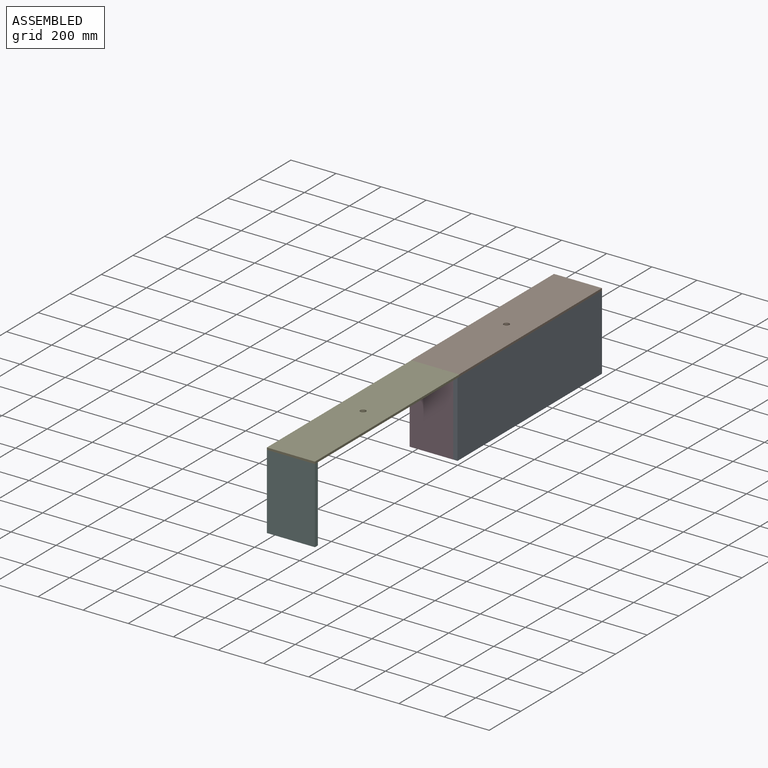
[diagram: assembled view]
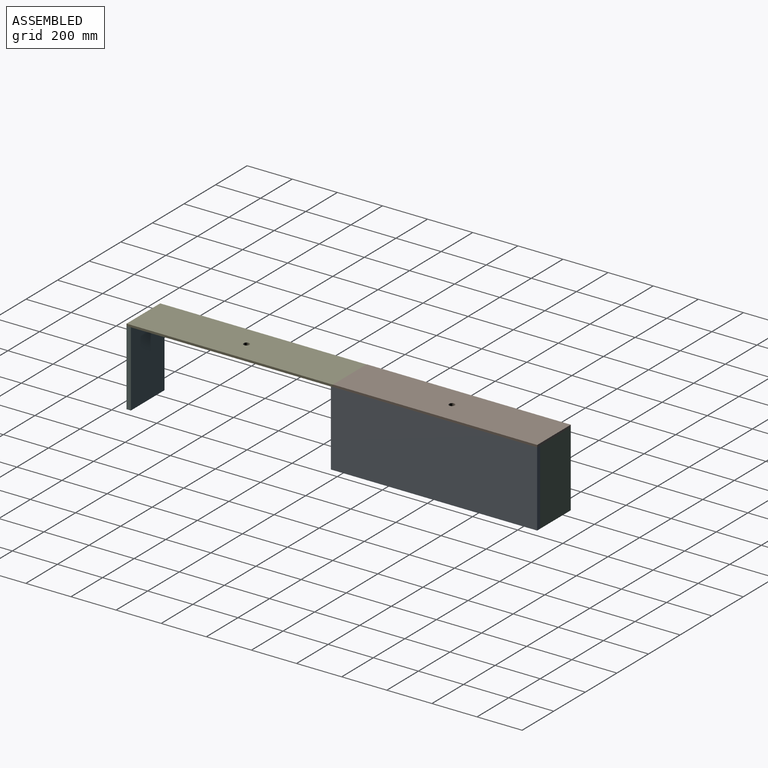
[diagram: assembled view, second angle]
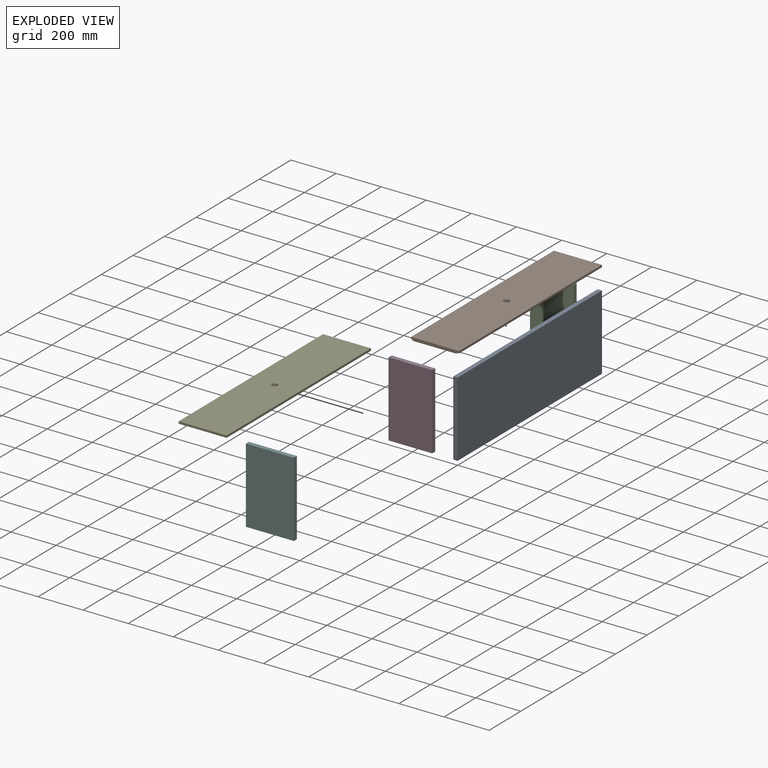
[diagram: exploded view]
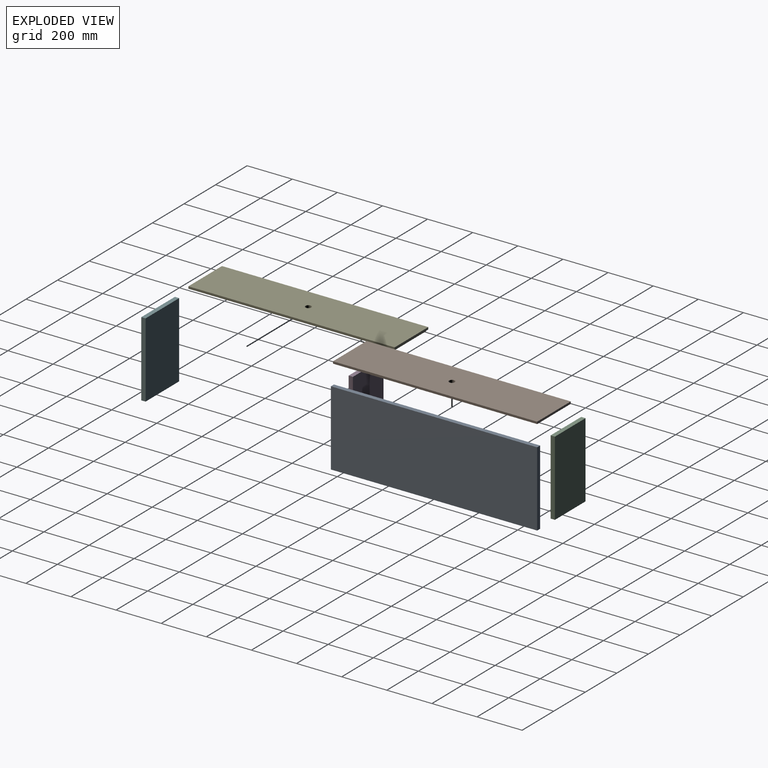
[diagram: exploded view, second angle]
ASSEMBLY  parts=6 mates=4
PART A: 6 faces, bbox 19.1x914.4x333.4 mm
  f0: plane 914.4x19.05mm, normal (0,0,1), area 17419.3mm2, adj f1,f3,f4,f5
  f1: plane 333.38x19.05mm, normal (0,-1,0), area 6350.8mm2, adj f0,f2,f4,f5
  f2: plane 914.4x19.05mm, normal (0,0,-1), area 17419.3mm2, adj f1,f3,f4,f5
  f3: plane 333.38x19.05mm, normal (0,1,0), area 6350.8mm2, adj f0,f2,f4,f5
  f4: plane 914.4x333.38mm, normal (1,0,0), area 304838.1mm2, adj f0,f1,f2,f3
  f5: plane 914.4x333.38mm, normal (-1,0,0), area 304838.1mm2, adj f0,f1,f2,f3
PART B: 11 faces, bbox 904.9x212.7x19.1 mm
  f0: plane 193.68x9.53mm, normal (-1,0,0), area 1844.8mm2, adj f1,f4,f5,f7
  f1: plane 876.3x9.53mm, normal (0,-1,0), area 8346.8mm2, adj f0,f2,f5,f7
  f2: plane 193.68x9.53mm, normal (1,0,0), area 1844.8mm2, adj f1,f4,f5,f7
  f3: cylinder r=12.7mm len=25.4mm, axis (0,0,-1), area 1520.1mm2, adj f5,f6
  f4: plane 904.88x19.05mm, normal (0,1,0), area 16965.7mm2, adj f0,f2,f5,f6,f7,f8,f9
  f5: plane 876.3x193.68mm, normal (0,0,1), area 169210.7mm2, adj f0,f1,f2,f3,f4
  f6: plane 904.88x212.73mm, normal (0,0,-1), area 191982.8mm2, adj f3,f4,f8,f9,f10
  f7: plane 904.88x212.73mm, normal (0,0,1), area 22772.1mm2, adj f0,f1,f2,f4,f8,f9,f10
  f8: plane 212.73x9.53mm, normal (1,0,0), area 2026.2mm2, adj f4,f6,f7,f10
  f9: plane 212.73x9.53mm, normal (-1,0,0), area 2026.2mm2, adj f4,f6,f7,f10
  f10: plane 904.88x9.53mm, normal (0,-1,0), area 8618.9mm2, adj f6,f7,f8,f9
PART C: 6 faces, bbox 193.7x19.1x333.4 mm
  f0: plane 193.68x19.05mm, normal (0,0,1), area 3689.5mm2, adj f1,f3,f4,f5
  f1: plane 333.38x19.05mm, normal (-1,0,0), area 6350.8mm2, adj f0,f2,f4,f5
  f2: plane 193.68x19.05mm, normal (0,0,-1), area 3689.5mm2, adj f1,f3,f4,f5
  f3: plane 333.38x19.05mm, normal (1,0,0), area 6350.8mm2, adj f0,f2,f4,f5
  f4: plane 333.38x193.68mm, normal (0,-1,0), area 64566.4mm2, adj f0,f1,f2,f3
  f5: plane 333.38x193.68mm, normal (0,1,0), area 64566.4mm2, adj f0,f1,f2,f3
PART D: same geometry as C
PART E: 11 faces, bbox 914.4x212.7x19.1 mm
  f0: plane 193.68x9.53mm, normal (-1,0,0), area 1844.8mm2, adj f1,f4,f5,f7
  f1: plane 885.83x9.53mm, normal (0,-1,0), area 8437.5mm2, adj f0,f2,f5,f7
  f2: plane 193.68x9.53mm, normal (1,0,0), area 1844.8mm2, adj f1,f4,f5,f7
  f3: cylinder r=12.7mm len=25.4mm, axis (0,0,-1), area 1520.1mm2, adj f5,f6
  f4: plane 914.4x19.05mm, normal (0,1,0), area 17147.1mm2, adj f0,f2,f5,f6,f7,f8,f9
  f5: plane 885.83x193.68mm, normal (0,0,1), area 171055.4mm2, adj f0,f1,f2,f3,f4
  f6: plane 914.4x212.73mm, normal (0,0,-1), area 194009mm2, adj f3,f4,f8,f9,f10
  f7: plane 914.4x212.73mm, normal (0,0,1), area 22953.6mm2, adj f0,f1,f2,f4,f8,f9,f10
  f8: plane 212.73x9.53mm, normal (1,0,0), area 2026.2mm2, adj f4,f6,f7,f10
  f9: plane 212.73x9.53mm, normal (-1,0,0), area 2026.2mm2, adj f4,f6,f7,f10
  f10: plane 914.4x9.53mm, normal (0,-1,0), area 8709.7mm2, adj f6,f7,f8,f9
PART F: 6 faces, bbox 212.7x19.1x333.4 mm
  f0: plane 212.73x19.05mm, normal (0,0,1), area 4052.4mm2, adj f1,f3,f4,f5
  f1: plane 333.38x19.05mm, normal (-1,0,0), area 6350.8mm2, adj f0,f2,f4,f5
  f2: plane 212.73x19.05mm, normal (0,0,-1), area 4052.4mm2, adj f1,f3,f4,f5
  f3: plane 333.38x19.05mm, normal (1,0,0), area 6350.8mm2, adj f0,f2,f4,f5
  f4: plane 333.38x212.73mm, normal (0,-1,0), area 70917.2mm2, adj f0,f1,f2,f3
  f5: plane 333.38x212.73mm, normal (0,1,0), area 70917.2mm2, adj f0,f1,f2,f3
PLACE A t=(193.68,-19.05,0)mm
PLACE B rot(axis=(0.71,-0.71,0),180deg) t=(212.73,895.35,342.9)mm
PLACE C t=(0,895.35,0)mm
PLACE D at identity fixed
PLACE E rot(axis=(-0.71,0.71,0),180deg) t=(213.99,-9.52,342.9)mm
PLACE F t=(1.27,-904.88,0)mm
MATE fastened A.f5 <-> D.f3  axis (-1,0,0) through (193.68,-19.05,0)mm
MATE fastened A.f5 <-> C.f3  axis (-1,0,0) through (193.68,895.35,0)mm
MATE slider E.f7 <-> F.f0  axis (0,0,-1) through (1.27,-923.93,333.38)mm
MATE slider B.f7 <-> A.f0  axis (0,0,-1) through (212.73,895.35,333.38)mm
